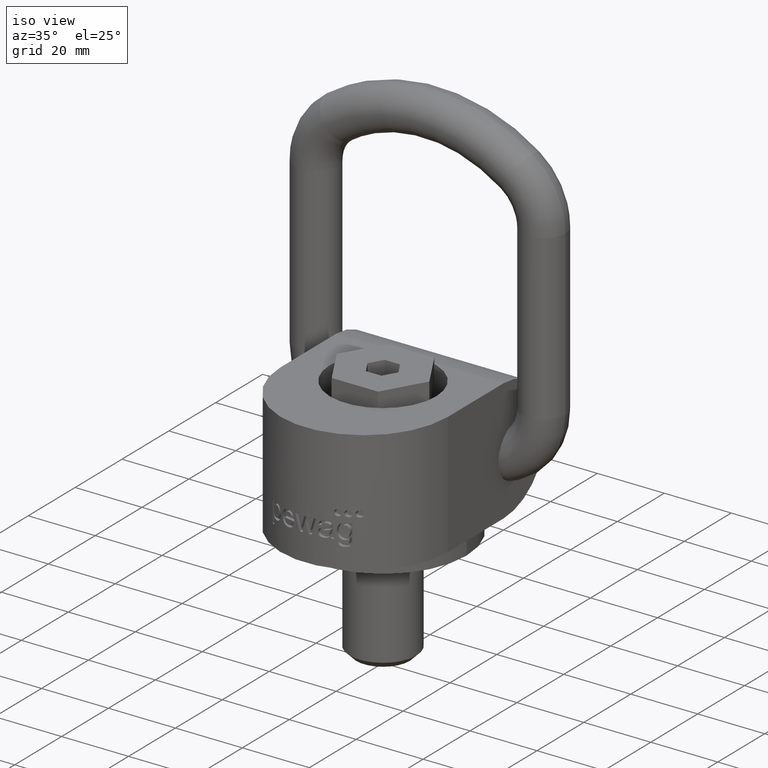
[diagram: clean part render]
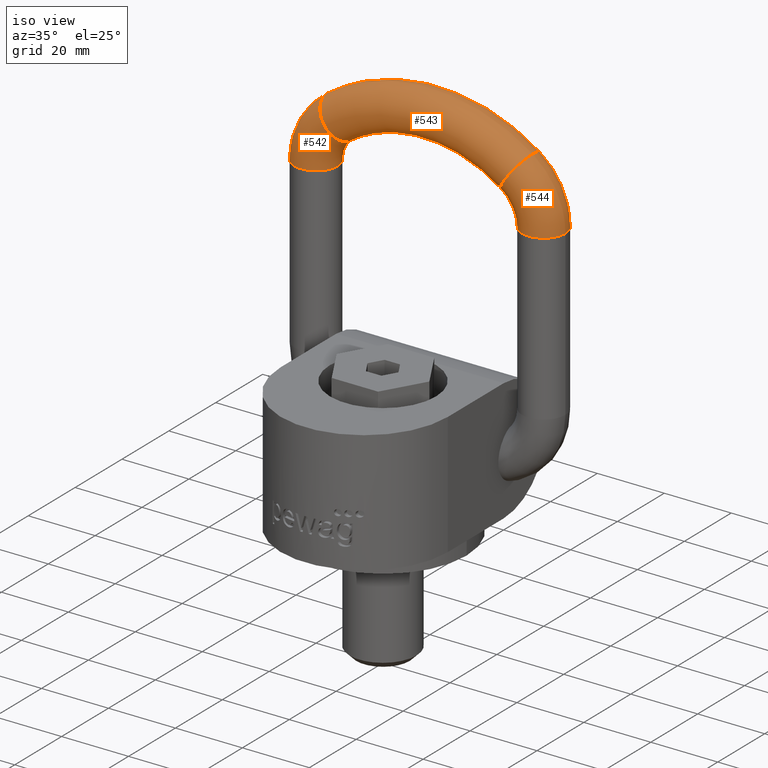
[diagram: same view with one multi-face feature highlighted, each face labeled with its STEP entity id]
A machine part, iso view. The highlighted faces form ONE feature: a constant-radius fillet chain: 3 tangent blend faces with common blend radius 6.5 mm. The faces share edges in the B-rep.
Their STEP definitions:
[1] entity #543 (Torus):
#242=TOROIDAL_SURFACE('',#2605,47.,6.5);
#543=ADVANCED_FACE('',(#626,#627),#242,.T.);
#626=FACE_BOUND('',#789,.T.);
#627=FACE_BOUND('',#790,.T.);
#789=EDGE_LOOP('',(#1761));
#790=EDGE_LOOP('',(#1762));
#1138=CIRCLE('',#2602,6.5);
#1139=CIRCLE('',#2604,6.5);
#1761=ORIENTED_EDGE('',*,*,#2292,.T.);
#1762=ORIENTED_EDGE('',*,*,#2291,.F.);
#1978=VERTEX_POINT('',#5288);
#1979=VERTEX_POINT('',#5291);
#2291=EDGE_CURVE('',#1978,#1978,#1138,.T.);
#2292=EDGE_CURVE('',#1979,#1979,#1139,.T.);
#2602=AXIS2_PLACEMENT_3D('',#5287,#3051,#3052);
#2604=AXIS2_PLACEMENT_3D('',#5290,#3055,#3056);
#2605=AXIS2_PLACEMENT_3D('',#5292,#3057,#3058);
#3051=DIRECTION('',(-0.819016130937495,0.,-0.573770491803278));
#3052=DIRECTION('',(-0.573770491803278,0.,0.819016130937495));
#3055=DIRECTION('',(-0.819016130937495,0.,0.573770491803279));
#3056=DIRECTION('',(0.573770491803279,0.,0.819016130937495));
#3057=DIRECTION('',(0.,-1.,0.));
#3058=DIRECTION('',(0.,0.,-1.));
#5287=CARTESIAN_POINT('',(-26.9672131147541,20.,92.9937581540623));
#5288=CARTESIAN_POINT('',(-30.6967213114754,20.,98.317363005156));
#5290=CARTESIAN_POINT('',(26.9672131147541,20.,92.9937581540623));
#5291=CARTESIAN_POINT('',(30.6967213114754,20.,98.317363005156));
#5292=CARTESIAN_POINT('',(0.,20.,54.5));
[2] entity #544 (Torus):
#243=TOROIDAL_SURFACE('',#2607,16.5,6.5);
#544=ADVANCED_FACE('',(#628,#629),#243,.T.);
#628=FACE_BOUND('',#791,.T.);
#629=FACE_BOUND('',#792,.T.);
#791=EDGE_LOOP('',(#1763));
#792=EDGE_LOOP('',(#1764));
#1139=CIRCLE('',#2604,6.5);
#1140=CIRCLE('',#2606,6.5);
#1763=ORIENTED_EDGE('',*,*,#2292,.F.);
#1764=ORIENTED_EDGE('',*,*,#2293,.T.);
#1979=VERTEX_POINT('',#5291);
#1980=VERTEX_POINT('',#5294);
#2292=EDGE_CURVE('',#1979,#1979,#1139,.T.);
#2293=EDGE_CURVE('',#1980,#1980,#1140,.T.);
#2604=AXIS2_PLACEMENT_3D('',#5290,#3055,#3056);
#2606=AXIS2_PLACEMENT_3D('',#5293,#3059,#3060);
#2607=AXIS2_PLACEMENT_3D('',#5295,#3061,#3062);
#3055=DIRECTION('',(-0.819016130937495,0.,0.573770491803279));
#3056=DIRECTION('',(0.573770491803279,0.,0.819016130937495));
#3059=DIRECTION('',(1.84331036808373E-15,0.,1.));
#3060=DIRECTION('',(1.,0.,-2.1350442781253E-15));
#3061=DIRECTION('',(0.,1.,0.));
#3062=DIRECTION('',(0.,0.,1.));
#5290=CARTESIAN_POINT('',(26.9672131147541,20.,92.9937581540623));
#5291=CARTESIAN_POINT('',(30.6967213114754,20.,98.317363005156));
#5293=CARTESIAN_POINT('',(34.,20.,79.4799919935936));
#5294=CARTESIAN_POINT('',(40.5,20.,79.4799919935936));
#5295=CARTESIAN_POINT('',(17.5,20.,79.4799919935936));
[3] entity #542 (Torus):
#241=TOROIDAL_SURFACE('',#2603,16.5,6.5);
#542=ADVANCED_FACE('',(#624,#625),#241,.T.);
#624=FACE_BOUND('',#787,.T.);
#625=FACE_BOUND('',#788,.T.);
#787=EDGE_LOOP('',(#1759));
#788=EDGE_LOOP('',(#1760));
#1137=CIRCLE('',#2600,6.5);
#1138=CIRCLE('',#2602,6.5);
#1759=ORIENTED_EDGE('',*,*,#2291,.T.);
#1760=ORIENTED_EDGE('',*,*,#2290,.F.);
#1977=VERTEX_POINT('',#5285);
#1978=VERTEX_POINT('',#5288);
#2290=EDGE_CURVE('',#1977,#1977,#1137,.T.);
#2291=EDGE_CURVE('',#1978,#1978,#1138,.T.);
#2600=AXIS2_PLACEMENT_3D('',#5284,#3047,#3048);
#2602=AXIS2_PLACEMENT_3D('',#5287,#3051,#3052);
#2603=AXIS2_PLACEMENT_3D('',#5289,#3053,#3054);
#3047=DIRECTION('',(-8.32667268468867E-16,0.,-1.));
#3048=DIRECTION('',(-1.,0.,0.));
#3051=DIRECTION('',(-0.819016130937495,0.,-0.573770491803278));
#3052=DIRECTION('',(-0.573770491803278,0.,0.819016130937495));
#3053=DIRECTION('',(0.,-1.,0.));
#3054=DIRECTION('',(0.,0.,-1.));
#5284=CARTESIAN_POINT('',(-34.,20.,79.4799919935936));
#5285=CARTESIAN_POINT('',(-40.5,20.,79.4799919935936));
#5287=CARTESIAN_POINT('',(-26.9672131147541,20.,92.9937581540623));
#5288=CARTESIAN_POINT('',(-30.6967213114754,20.,98.317363005156));
#5289=CARTESIAN_POINT('',(-17.5,20.,79.4799919935936));